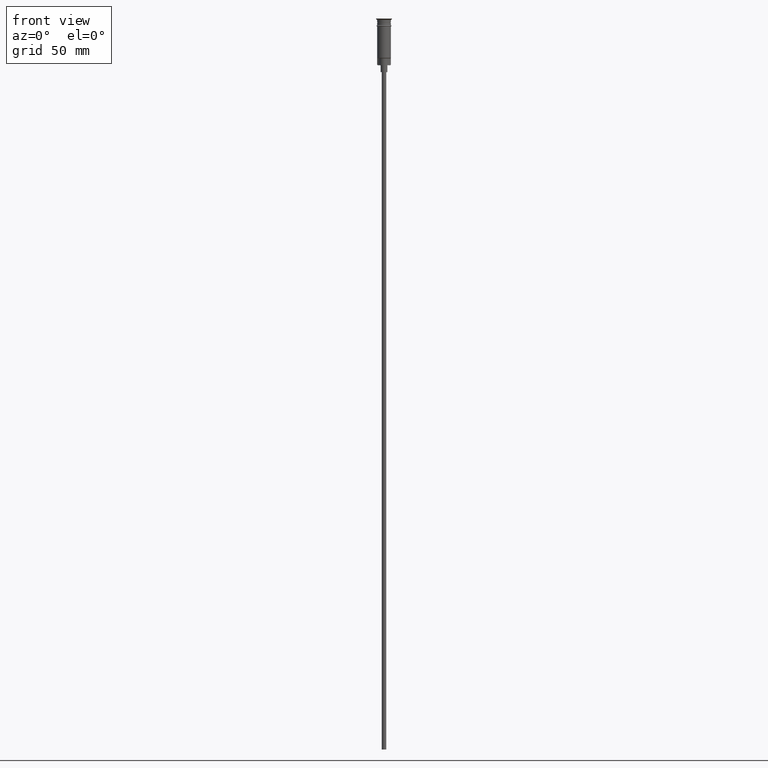
[diagram: clean part render]
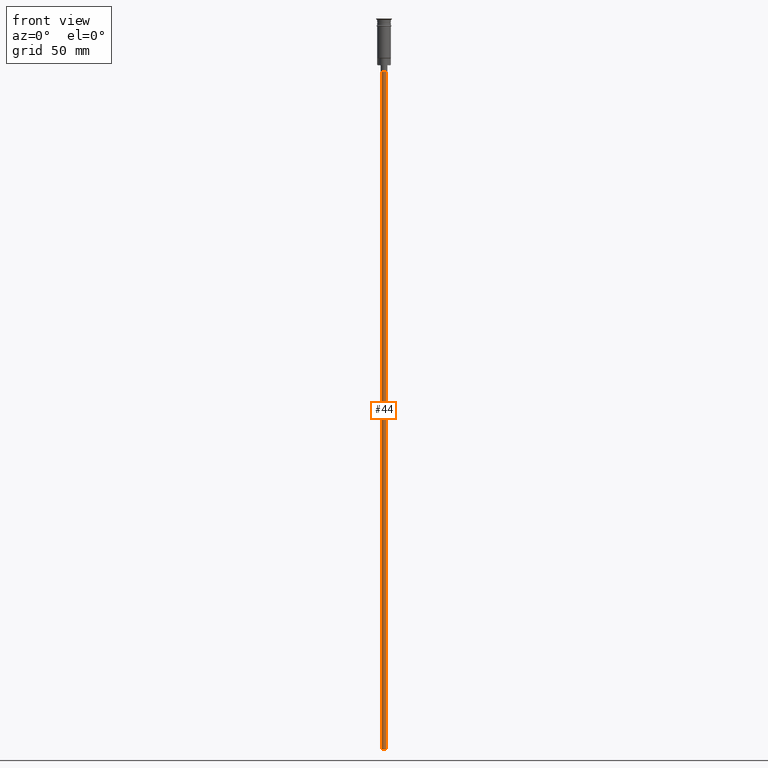
[diagram: same view with one face highlighted and labeled with its STEP entity id]
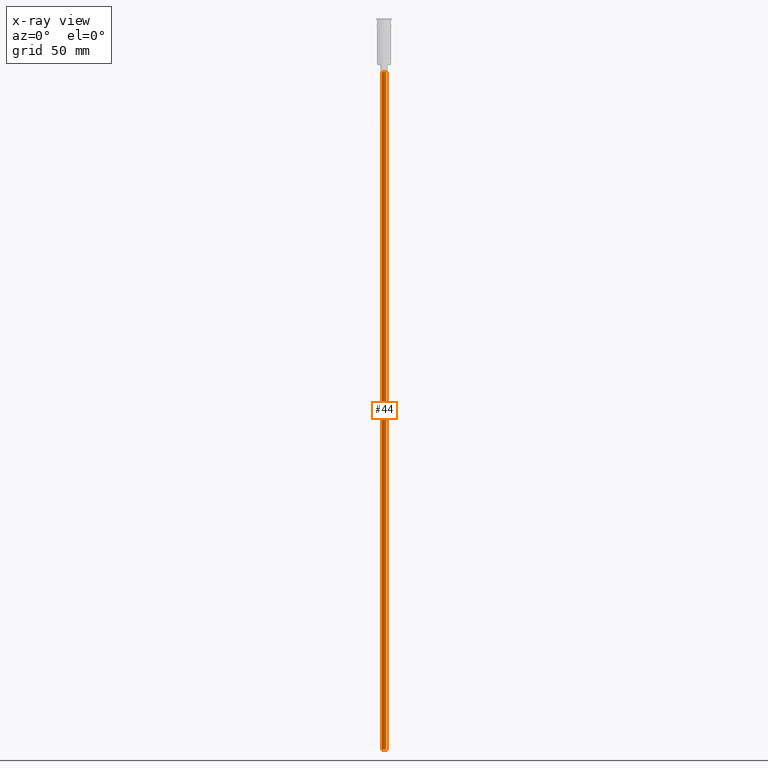
[diagram: x-ray of the same camera — body ghosted, the highlighted face saturated]
A machine part, front view. The second image highlights one B-rep face of the part: STEP entity #44.
The next image is the same camera in x-ray: the body ghosted, the highlighted face saturated — about 0% of this face is hidden behind the body in this view.
In plain terms, the highlighted cylindrical surface (edge-blend (fillet) strip) has radius 1 mm, axis along (-0, -0, 1).
Its self-contained STEP definition (entity closure, byte-faithful):
#7 = AXIS2_PLACEMENT_3D ( 'NONE', #1279, #519, #1030 ) ;
#14 = ORIENTED_EDGE ( 'NONE', *, *, #1416, .F. ) ;
#33 = CARTESIAN_POINT ( 'NONE',  ( 0.9999999999999997780, 0.000000000000000000, -320.5000000000000000 ) ) ;
#44 = ADVANCED_FACE ( 'NONE', ( #85 ), #1014, .T. ) ;
#85 = FACE_OUTER_BOUND ( 'NONE', #130, .T. ) ;
#130 = EDGE_LOOP ( 'NONE', ( #1590, #14, #1230, #1567 ) ) ;
#151 = CIRCLE ( 'NONE', #7, 0.9999999999999997780 ) ;
#254 = CIRCLE ( 'NONE', #683, 0.9999999999999997780 ) ;
#288 = VERTEX_POINT ( 'NONE', #797 ) ;
#300 = LINE ( 'NONE', #663, #1222 ) ;
#519 = DIRECTION ( 'NONE',  ( 0.000000000000000000, 0.000000000000000000, -1.000000000000000000 ) ) ;
#599 = CARTESIAN_POINT ( 'NONE',  ( -0.9999999999999997780, 1.224646799147352961E-16, -23.50000000000000000 ) ) ;
#612 = DIRECTION ( 'NONE',  ( -1.000000000000000000, 0.000000000000000000, 0.000000000000000000 ) ) ;
#663 = CARTESIAN_POINT ( 'NONE',  ( -0.9999999999999997780, 1.224646799147352961E-16, -320.5000000000000000 ) ) ;
#683 = AXIS2_PLACEMENT_3D ( 'NONE', #863, #1004, #612 ) ;
#780 = LINE ( 'NONE', #33, #920 ) ;
#797 = CARTESIAN_POINT ( 'NONE',  ( 0.9999999999999997780, 0.000000000000000000, -320.5000000000000000 ) ) ;
#800 = CARTESIAN_POINT ( 'NONE',  ( 0.000000000000000000, 0.000000000000000000, -320.5000000000000000 ) ) ;
#815 = EDGE_CURVE ( 'NONE', #1296, #1277, #151, .T. ) ;
#837 = EDGE_CURVE ( 'NONE', #288, #1296, #780, .T. ) ;
#863 = CARTESIAN_POINT ( 'NONE',  ( 0.000000000000000000, 0.000000000000000000, -320.5000000000000000 ) ) ;
#917 = DIRECTION ( 'NONE',  ( -0.000000000000000000, -0.000000000000000000, 1.000000000000000000 ) ) ;
#920 = VECTOR ( 'NONE', #917, 1000.000000000000000 ) ;
#925 = DIRECTION ( 'NONE',  ( -0.000000000000000000, -0.000000000000000000, 1.000000000000000000 ) ) ;
#993 = VERTEX_POINT ( 'NONE', #1520 ) ;
#1004 = DIRECTION ( 'NONE',  ( 0.000000000000000000, 0.000000000000000000, -1.000000000000000000 ) ) ;
#1014 = CYLINDRICAL_SURFACE ( 'NONE', #1288, 0.9999999999999997780 ) ;
#1030 = DIRECTION ( 'NONE',  ( -1.000000000000000000, 0.000000000000000000, 0.000000000000000000 ) ) ;
#1222 = VECTOR ( 'NONE', #925, 1000.000000000000000 ) ;
#1230 = ORIENTED_EDGE ( 'NONE', *, *, #837, .T. ) ;
#1235 = CARTESIAN_POINT ( 'NONE',  ( 0.9999999999999997780, 0.000000000000000000, -23.50000000000000000 ) ) ;
#1277 = VERTEX_POINT ( 'NONE', #599 ) ;
#1279 = CARTESIAN_POINT ( 'NONE',  ( 0.000000000000000000, 0.000000000000000000, -23.50000000000000000 ) ) ;
#1288 = AXIS2_PLACEMENT_3D ( 'NONE', #800, #1304, #1522 ) ;
#1296 = VERTEX_POINT ( 'NONE', #1235 ) ;
#1304 = DIRECTION ( 'NONE',  ( -0.000000000000000000, -0.000000000000000000, 1.000000000000000000 ) ) ;
#1407 = EDGE_CURVE ( 'NONE', #993, #1277, #300, .T. ) ;
#1416 = EDGE_CURVE ( 'NONE', #288, #993, #254, .T. ) ;
#1520 = CARTESIAN_POINT ( 'NONE',  ( -0.9999999999999997780, 1.224646799147352961E-16, -320.5000000000000000 ) ) ;
#1522 = DIRECTION ( 'NONE',  ( 1.000000000000000000, 0.000000000000000000, 0.000000000000000000 ) ) ;
#1567 = ORIENTED_EDGE ( 'NONE', *, *, #815, .T. ) ;
#1590 = ORIENTED_EDGE ( 'NONE', *, *, #1407, .F. ) ;